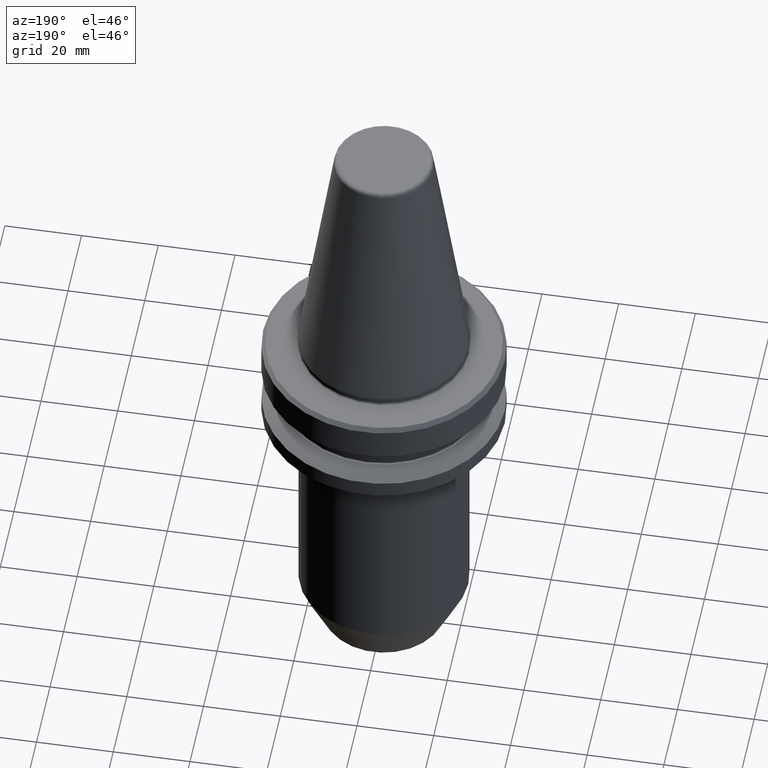
[diagram: clean part render]
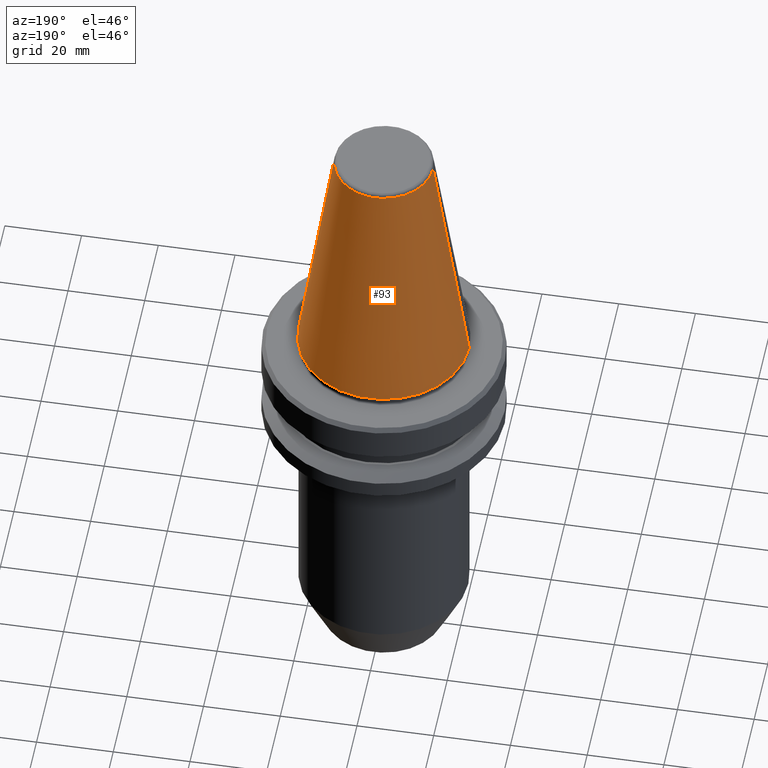
[diagram: same view with one face highlighted and labeled with its STEP entity id]
A machine part, auxiliary view. The second image highlights one B-rep face of the part: STEP entity #93.
In plain terms, the highlighted conical surface has half-angle 8.297 deg.
Its self-contained STEP definition (entity closure, byte-faithful):
#93 = ADVANCED_FACE ( 'NONE', ( #821 ), #987, .T. ) ;
#128 = DIRECTION ( 'NONE',  ( -1.000000000000000000, 0.0000000000000000000, 0.0000000000000000000 ) ) ;
#133 = DIRECTION ( 'NONE',  ( 0.0000000000000000000, 0.0000000000000000000, -1.000000000000000000 ) ) ;
#141 = CARTESIAN_POINT ( 'NONE',  ( 0.0000000000000000000, 0.0000000000000000000, 0.6887132116596417200 ) ) ;
#143 = AXIS2_PLACEMENT_3D ( 'NONE', #141, #728, #229 ) ;
#167 = AXIS2_PLACEMENT_3D ( 'NONE', #786, #302, #858 ) ;
#208 = CARTESIAN_POINT ( 'NONE',  ( -22.22499999999971700, 0.0000000000000000000, 0.6887132116596417200 ) ) ;
#209 = CIRCLE ( 'NONE', #167, 12.81220206925715000 ) ;
#228 = ORIENTED_EDGE ( 'NONE', *, *, #873, .F. ) ;
#229 = DIRECTION ( 'NONE',  ( 1.000000000000000000, 0.0000000000000000000, 0.0000000000000000000 ) ) ;
#230 = DIRECTION ( 'NONE',  ( 0.1443081888881784800, 1.767265616126594100E-017, -0.9895327920891828800 ) ) ;
#271 = AXIS2_PLACEMENT_3D ( 'NONE', #490, #133, #128 ) ;
#277 = LINE ( 'NONE', #713, #501 ) ;
#302 = DIRECTION ( 'NONE',  ( -0.0000000000000000000, -0.0000000000000000000, 1.000000000000000000 ) ) ;
#317 = CARTESIAN_POINT ( 'NONE',  ( 12.81220206925713600, 0.0000000000000000000, 65.23302140054848100 ) ) ;
#352 = CARTESIAN_POINT ( 'NONE',  ( 22.22499999999971700, 0.0000000000000000000, 0.6887132116596417200 ) ) ;
#353 = ORIENTED_EDGE ( 'NONE', *, *, #826, .F. ) ;
#380 = DIRECTION ( 'NONE',  ( -0.1443081888881784800, 0.0000000000000000000, -0.9895327920891828800 ) ) ;
#409 = CARTESIAN_POINT ( 'NONE',  ( -22.22499999999971700, 2.721777511104957700E-015, 0.6887132116596417200 ) ) ;
#470 = VECTOR ( 'NONE', #380, 999.9999999999998900 ) ;
#483 = VERTEX_POINT ( 'NONE', #409 ) ;
#490 = CARTESIAN_POINT ( 'NONE',  ( 0.0000000000000000000, 0.0000000000000000000, 0.6887132116596417200 ) ) ;
#501 = VECTOR ( 'NONE', #230, 999.9999999999998900 ) ;
#517 = EDGE_LOOP ( 'NONE', ( #228, #1039, #859, #353 ) ) ;
#616 = EDGE_CURVE ( 'NONE', #638, #777, #277, .T. ) ;
#638 = VERTEX_POINT ( 'NONE', #317 ) ;
#713 = CARTESIAN_POINT ( 'NONE',  ( 22.22499999999971700, 2.721777511104957700E-015, 0.6887132116596417200 ) ) ;
#728 = DIRECTION ( 'NONE',  ( -0.0000000000000000000, -0.0000000000000000000, 1.000000000000000000 ) ) ;
#777 = VERTEX_POINT ( 'NONE', #352 ) ;
#786 = CARTESIAN_POINT ( 'NONE',  ( 0.0000000000000000000, 0.0000000000000000000, 65.23302140054848100 ) ) ;
#821 = FACE_OUTER_BOUND ( 'NONE', #517, .T. ) ;
#826 = EDGE_CURVE ( 'NONE', #876, #483, #905, .T. ) ;
#858 = DIRECTION ( 'NONE',  ( 1.000000000000000000, 0.0000000000000000000, 0.0000000000000000000 ) ) ;
#859 = ORIENTED_EDGE ( 'NONE', *, *, #915, .T. ) ;
#873 = EDGE_CURVE ( 'NONE', #638, #876, #209, .T. ) ;
#876 = VERTEX_POINT ( 'NONE', #945 ) ;
#905 = LINE ( 'NONE', #208, #470 ) ;
#915 = EDGE_CURVE ( 'NONE', #777, #483, #937, .T. ) ;
#937 = CIRCLE ( 'NONE', #143, 22.22499999999971700 ) ;
#945 = CARTESIAN_POINT ( 'NONE',  ( -12.81220206925713600, 1.569042225414484800E-015, 65.23302140054848100 ) ) ;
#987 = CONICAL_SURFACE ( 'NONE', #271, 22.22499999999971700, 0.1448138077623186700 ) ;
#1039 = ORIENTED_EDGE ( 'NONE', *, *, #616, .T. ) ;